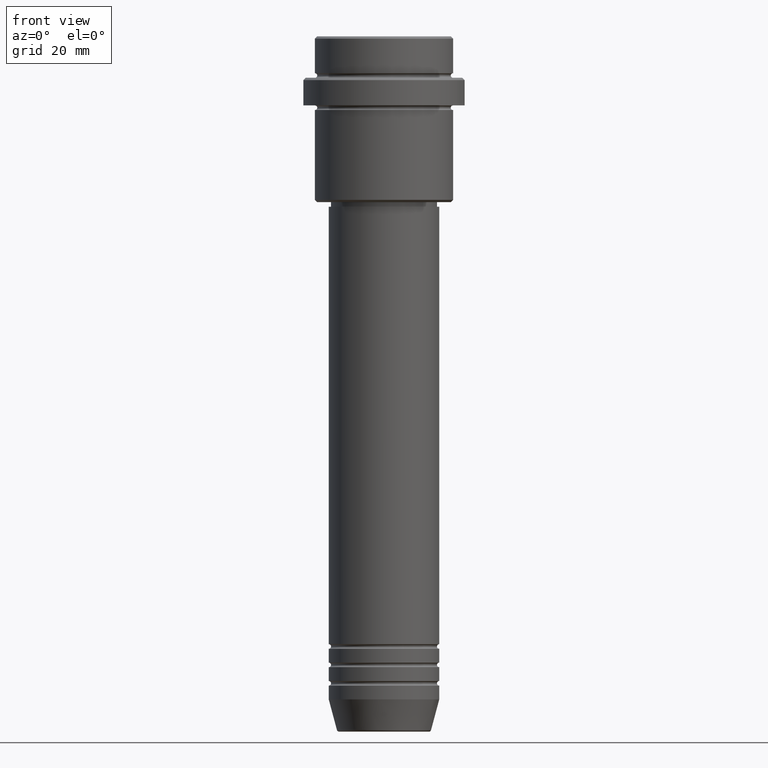
[diagram: clean part render]
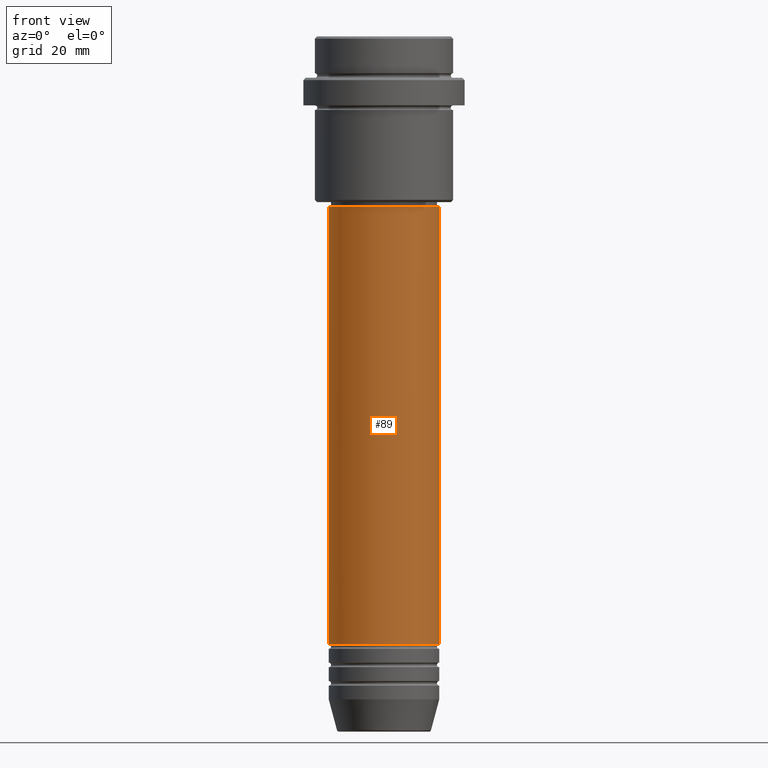
[diagram: same view with one face highlighted and labeled with its STEP entity id]
A machine part, front view. The second image highlights one B-rep face of the part: STEP entity #89.
In plain terms, the highlighted cylindrical surface (partial cylindrical patch) has radius 12 mm, axis along (-0, -0, 1).
Its self-contained STEP definition (entity closure, byte-faithful):
#8 = VERTEX_POINT ( 'NONE', #385 ) ;
#17 = VERTEX_POINT ( 'NONE', #703 ) ;
#89 = ADVANCED_FACE ( 'NONE', ( #1362 ), #1230, .T. ) ;
#104 = EDGE_LOOP ( 'NONE', ( #863, #198, #636, #330 ) ) ;
#169 = AXIS2_PLACEMENT_3D ( 'NONE', #1309, #1072, #221 ) ;
#198 = ORIENTED_EDGE ( 'NONE', *, *, #1391, .T. ) ;
#221 = DIRECTION ( 'NONE',  ( 1.000000000000000000, 0.000000000000000000, 0.000000000000000000 ) ) ;
#266 = DIRECTION ( 'NONE',  ( -0.000000000000000000, -0.000000000000000000, 1.000000000000000000 ) ) ;
#291 = DIRECTION ( 'NONE',  ( -0.000000000000000000, -0.000000000000000000, 1.000000000000000000 ) ) ;
#330 = ORIENTED_EDGE ( 'NONE', *, *, #1045, .F. ) ;
#385 = CARTESIAN_POINT ( 'NONE',  ( 12.00000000000000000, 0.000000000000000000, -131.9999999999998579 ) ) ;
#413 = VERTEX_POINT ( 'NONE', #1016 ) ;
#431 = VECTOR ( 'NONE', #291, 1000.000000000000000 ) ;
#474 = AXIS2_PLACEMENT_3D ( 'NONE', #1254, #266, #699 ) ;
#501 = LINE ( 'NONE', #935, #1161 ) ;
#587 = CARTESIAN_POINT ( 'NONE',  ( -12.00000000000000000, 1.469576158976823947E-15, -131.9999999999998579 ) ) ;
#633 = DIRECTION ( 'NONE',  ( -0.000000000000000000, -0.000000000000000000, 1.000000000000000000 ) ) ;
#636 = ORIENTED_EDGE ( 'NONE', *, *, #1173, .T. ) ;
#699 = DIRECTION ( 'NONE',  ( 1.000000000000000000, 0.000000000000000000, 0.000000000000000000 ) ) ;
#703 = CARTESIAN_POINT ( 'NONE',  ( -11.99999999999999822, 1.469576158976823750E-15, -37.00000000000000000 ) ) ;
#739 = CARTESIAN_POINT ( 'NONE',  ( 0.000000000000000000, 0.000000000000000000, -131.9999999999998579 ) ) ;
#863 = ORIENTED_EDGE ( 'NONE', *, *, #941, .F. ) ;
#873 = VERTEX_POINT ( 'NONE', #587 ) ;
#935 = CARTESIAN_POINT ( 'NONE',  ( 12.00000000000000000, 0.000000000000000000, 0.000000000000000000 ) ) ;
#941 = EDGE_CURVE ( 'NONE', #873, #17, #1033, .T. ) ;
#1016 = CARTESIAN_POINT ( 'NONE',  ( 11.99999999999999822, 0.000000000000000000, -37.00000000000000000 ) ) ;
#1033 = LINE ( 'NONE', #1224, #431 ) ;
#1045 = EDGE_CURVE ( 'NONE', #17, #413, #1393, .T. ) ;
#1072 = DIRECTION ( 'NONE',  ( -0.000000000000000000, -0.000000000000000000, 1.000000000000000000 ) ) ;
#1090 = AXIS2_PLACEMENT_3D ( 'NONE', #739, #633, #1399 ) ;
#1161 = VECTOR ( 'NONE', #1340, 1000.000000000000000 ) ;
#1173 = EDGE_CURVE ( 'NONE', #8, #413, #501, .T. ) ;
#1203 = CIRCLE ( 'NONE', #1090, 12.00000000000000000 ) ;
#1224 = CARTESIAN_POINT ( 'NONE',  ( -12.00000000000000000, 1.469576158976823947E-15, 0.000000000000000000 ) ) ;
#1230 = CYLINDRICAL_SURFACE ( 'NONE', #474, 12.00000000000000000 ) ;
#1254 = CARTESIAN_POINT ( 'NONE',  ( 0.000000000000000000, 0.000000000000000000, 0.000000000000000000 ) ) ;
#1309 = CARTESIAN_POINT ( 'NONE',  ( 0.000000000000000000, 0.000000000000000000, -37.00000000000000000 ) ) ;
#1340 = DIRECTION ( 'NONE',  ( -0.000000000000000000, -0.000000000000000000, 1.000000000000000000 ) ) ;
#1362 = FACE_OUTER_BOUND ( 'NONE', #104, .T. ) ;
#1391 = EDGE_CURVE ( 'NONE', #873, #8, #1203, .T. ) ;
#1393 = CIRCLE ( 'NONE', #169, 11.99999999999999822 ) ;
#1399 = DIRECTION ( 'NONE',  ( 1.000000000000000000, 0.000000000000000000, 0.000000000000000000 ) ) ;